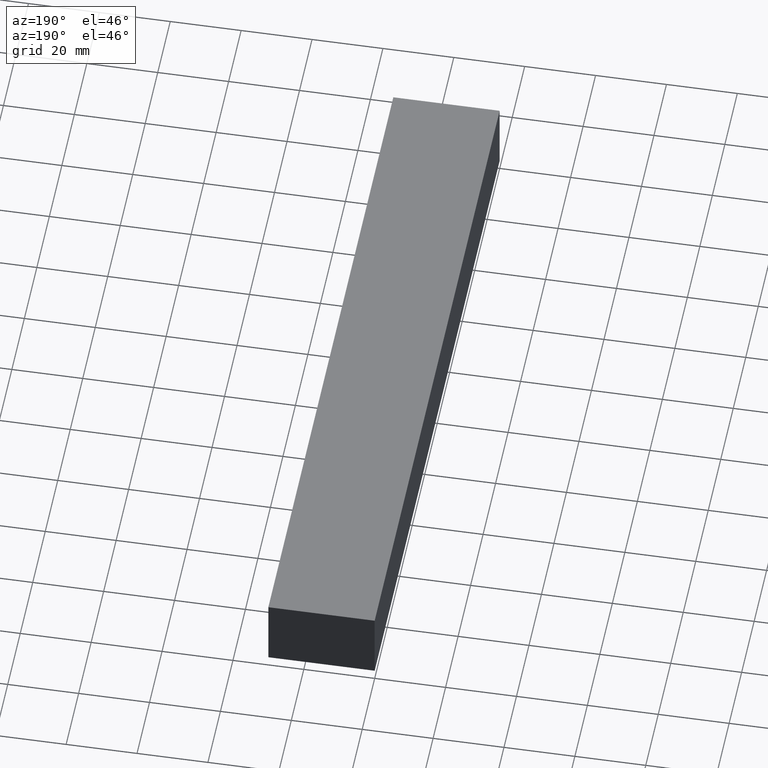
[diagram: clean part render]
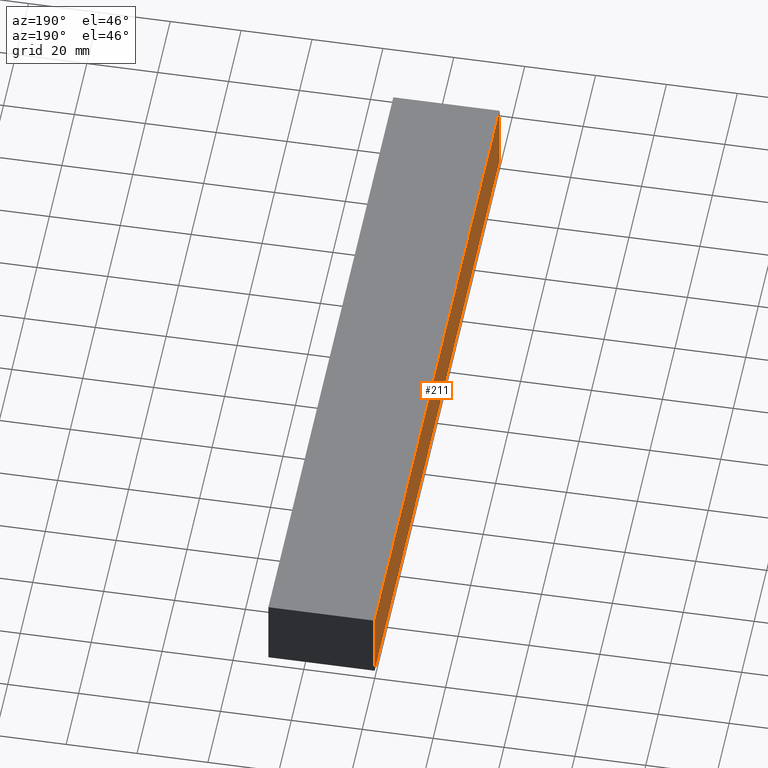
[diagram: same view with one face highlighted and labeled with its STEP entity id]
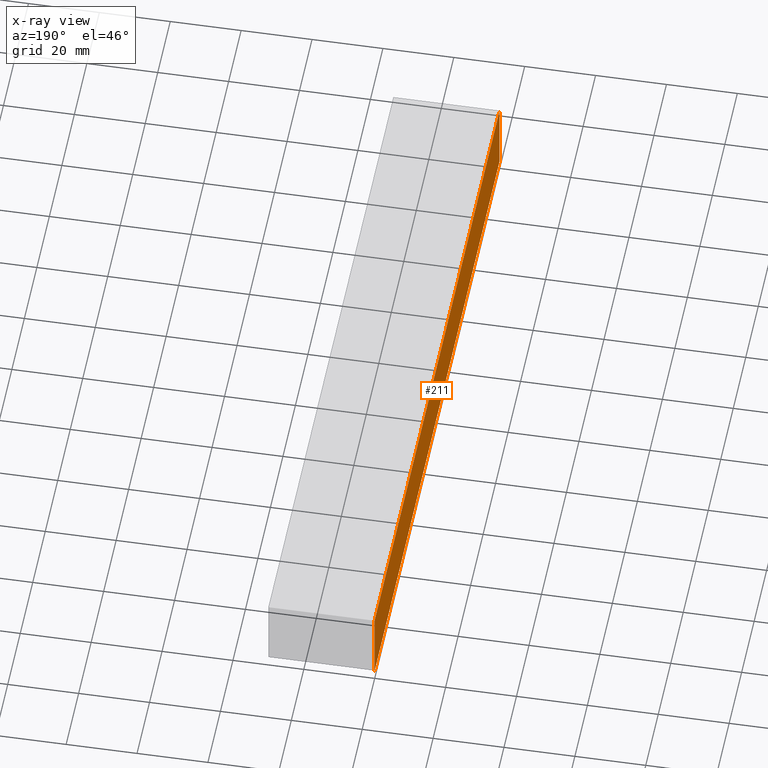
[diagram: x-ray of the same camera — body ghosted, the highlighted face saturated]
A machine part, auxiliary view. The second image highlights one B-rep face of the part: STEP entity #211.
The next image is the same camera in x-ray: the body ghosted, the highlighted face saturated — about 0% of this face is hidden behind the body in this view.
In plain terms, the highlighted planar face has unit normal (-1, 0, 0).
Its self-contained STEP definition (entity closure, byte-faithful):
#1 = FACE_OUTER_BOUND ( 'NONE', #51, .T. ) ;
#10 = LINE ( 'NONE', #123, #193 ) ;
#11 = ORIENTED_EDGE ( 'NONE', *, *, #150, .F. ) ;
#29 = VECTOR ( 'NONE', #126, 1000.000000000000000 ) ;
#31 = CARTESIAN_POINT ( 'NONE',  ( 0.0000000000000000000, 0.0000000000000000000, -10.00000000000000000 ) ) ;
#34 = LINE ( 'NONE', #90, #29 ) ;
#44 = DIRECTION ( 'NONE',  ( 0.0000000000000000000, 0.0000000000000000000, 1.000000000000000000 ) ) ;
#51 = EDGE_LOOP ( 'NONE', ( #87, #11, #67, #62 ) ) ;
#57 = VECTOR ( 'NONE', #93, 1000.000000000000000 ) ;
#59 = CARTESIAN_POINT ( 'NONE',  ( 0.0000000000000000000, 200.0000000000000000, 10.00000000000000000 ) ) ;
#60 = DIRECTION ( 'NONE',  ( 0.0000000000000000000, -1.000000000000000000, 0.0000000000000000000 ) ) ;
#62 = ORIENTED_EDGE ( 'NONE', *, *, #131, .T. ) ;
#67 = ORIENTED_EDGE ( 'NONE', *, *, #101, .T. ) ;
#87 = ORIENTED_EDGE ( 'NONE', *, *, #114, .F. ) ;
#90 = CARTESIAN_POINT ( 'NONE',  ( 0.0000000000000000000, 200.0000000000000000, -10.00000000000000000 ) ) ;
#92 = VERTEX_POINT ( 'NONE', #216 ) ;
#93 = DIRECTION ( 'NONE',  ( 0.0000000000000000000, 0.0000000000000000000, 1.000000000000000000 ) ) ;
#100 = VERTEX_POINT ( 'NONE', #59 ) ;
#101 = EDGE_CURVE ( 'NONE', #92, #195, #34, .T. ) ;
#105 = VECTOR ( 'NONE', #60, 1000.000000000000000 ) ;
#112 = VERTEX_POINT ( 'NONE', #206 ) ;
#114 = EDGE_CURVE ( 'NONE', #100, #112, #153, .T. ) ;
#123 = CARTESIAN_POINT ( 'NONE',  ( 0.0000000000000000000, 200.0000000000000000, -10.00000000000000000 ) ) ;
#126 = DIRECTION ( 'NONE',  ( 0.0000000000000000000, -1.000000000000000000, 0.0000000000000000000 ) ) ;
#131 = EDGE_CURVE ( 'NONE', #195, #112, #146, .T. ) ;
#143 = CARTESIAN_POINT ( 'NONE',  ( 0.0000000000000000000, 200.0000000000000000, -10.00000000000000000 ) ) ;
#146 = LINE ( 'NONE', #182, #57 ) ;
#150 = EDGE_CURVE ( 'NONE', #92, #100, #10, .T. ) ;
#153 = LINE ( 'NONE', #168, #105 ) ;
#154 = PLANE ( 'NONE',  #231 ) ;
#168 = CARTESIAN_POINT ( 'NONE',  ( 0.0000000000000000000, 200.0000000000000000, 10.00000000000000000 ) ) ;
#182 = CARTESIAN_POINT ( 'NONE',  ( 0.0000000000000000000, 0.0000000000000000000, -10.00000000000000000 ) ) ;
#185 = DIRECTION ( 'NONE',  ( 0.0000000000000000000, 0.0000000000000000000, 1.000000000000000000 ) ) ;
#193 = VECTOR ( 'NONE', #44, 1000.000000000000000 ) ;
#195 = VERTEX_POINT ( 'NONE', #31 ) ;
#206 = CARTESIAN_POINT ( 'NONE',  ( 0.0000000000000000000, 0.0000000000000000000, 10.00000000000000000 ) ) ;
#210 = DIRECTION ( 'NONE',  ( -1.000000000000000000, 0.0000000000000000000, 0.0000000000000000000 ) ) ;
#211 = ADVANCED_FACE ( 'NONE', ( #1 ), #154, .T. ) ;
#216 = CARTESIAN_POINT ( 'NONE',  ( 0.0000000000000000000, 200.0000000000000000, -10.00000000000000000 ) ) ;
#231 = AXIS2_PLACEMENT_3D ( 'NONE', #143, #210, #185 ) ;